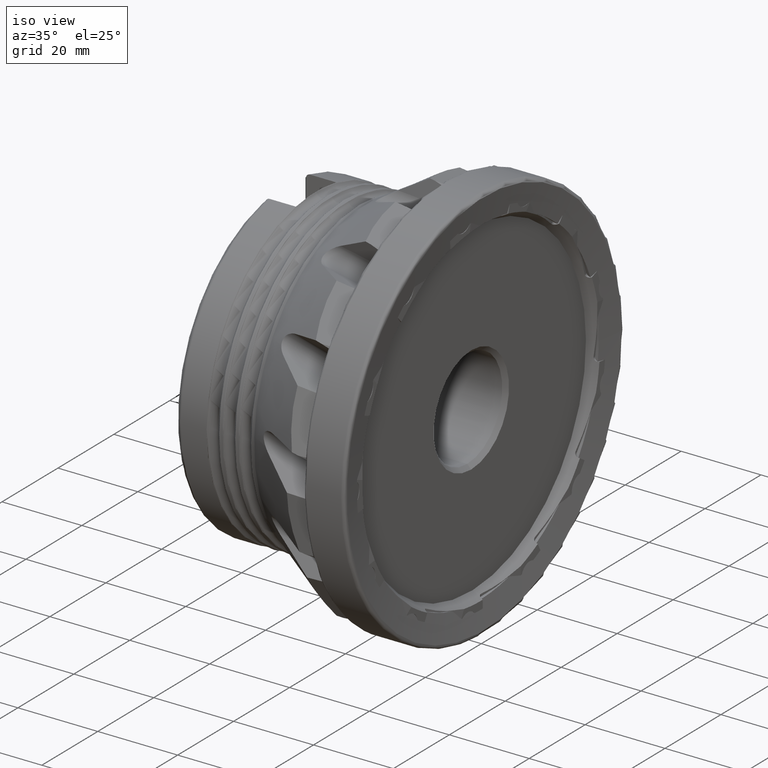
[diagram: clean part render]
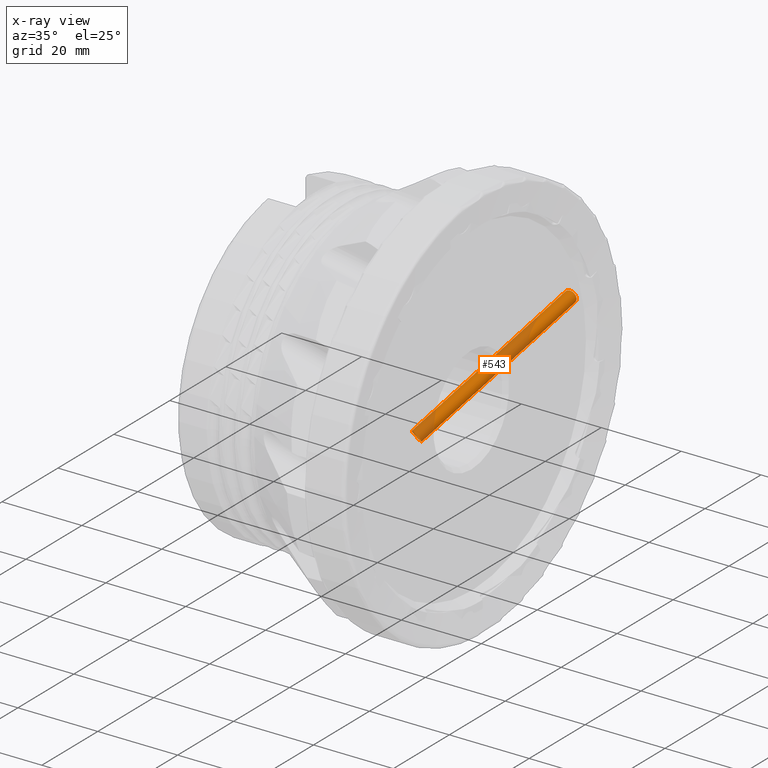
[diagram: x-ray — body ghosted, one internal face saturated and labeled with its STEP entity id]
A machine part, iso view, then the same camera in x-ray: the body is ghosted and one INTERNAL B-rep face — a face not visible from any outside direction — is saturated and labeled: STEP entity #543.
In plain terms, the highlighted cylindrical surface (bore or boss wall) has radius 1.5 mm, axis along (-0.383, -0.7361, -0.5581).
Its self-contained STEP definition (entity closure, byte-faithful):
#543 = ADVANCED_FACE ( 'NONE', ( #6629, #10851 ), #8543, .F. ) ;
#913 = CARTESIAN_POINT ( 'NONE',  ( -8.594431650126747300, 41.96749445976744400, 8.588939791978310400 ) ) ;
#957 = CARTESIAN_POINT ( 'NONE',  ( -6.560593080364640200, 41.56592660481933900, 9.906481771726600300 ) ) ;
#989 = CARTESIAN_POINT ( 'NONE',  ( -6.096087533610125700, 42.10220449255515300, 7.155683338932678200 ) ) ;
#1590 = AXIS2_PLACEMENT_3D ( 'NONE', #4880, #11867, #5899 ) ;
#1899 = CARTESIAN_POINT ( 'NONE',  ( -8.434067890988146100, 41.87808441614457400, 8.976146745443058400 ) ) ;
#1911 = EDGE_CURVE ( 'NONE', #7543, #7543, #3319, .T. ) ;
#1940 = CARTESIAN_POINT ( 'NONE',  ( -6.053787083671673000, 41.58089366858156700, 9.727966365416298400 ) ) ;
#1988 = CARTESIAN_POINT ( 'NONE',  ( -6.630379648889278800, 42.18809088860609100, 6.808450595441918600 ) ) ;
#2588 = B_SPLINE_CURVE_WITH_KNOTS ( 'NONE', 3,
 ( #2865, #7829, #3845, #10819, #4839, #11830, #5851, #12792, #6843, #913, #7874, #1899, #8875, #2911, #9858, #3883, #10868, #4877, #11865, #5898, #12839, #6878, #957, #7924, #1940, #8910, #2958, #9907, #3920, #10910, #4931, #11898, #5929, #12880, #6927, #989, #7965, #1988, #8952, #2995, #9954, #3967, #10948, #4978, #11947, #5962 ),
 .UNSPECIFIED., .T., .F.,
 ( 4, 2, 2, 2, 2, 2, 2, 2, 2, 2, 2, 2, 2, 2, 2, 2, 2, 2, 2, 2, 2, 2, 4 ),
 ( 0.0000000000000000000, 0.0003193963289397444800, 0.0006387926578794889600, 0.001277585315758977500, 0.001596981644698724200, 0.001916377973638470800, 0.002555170631517970600, 0.003193963289397471000, 0.003513359618337218400, 0.003832755947276965400, 0.004152152276216712800, 0.004471548605156460200, 0.005110341263035955000, 0.005429737591975704200, 0.005749133920915452400, 0.006068530249855202400, 0.006387926578794951600, 0.007665511894553950700, 0.008304304552433455100, 0.008943097210312956800, 0.009262493539252706800, 0.009581889868192460300, 0.01022068252607196200 ),
 .UNSPECIFIED. ) ;
#2654 = CARTESIAN_POINT ( 'NONE',  ( -0.4739454941726194400, 54.59191525470708900, 17.91465985784205700 ) ) ;
#2865 = CARTESIAN_POINT ( 'NONE',  ( -8.238318088300996300, 42.23840621931487500, 7.024260346499949600 ) ) ;
#2911 = CARTESIAN_POINT ( 'NONE',  ( -8.036172849586970200, 41.74904844705238100, 9.463324593721244700 ) ) ;
#2958 = CARTESIAN_POINT ( 'NONE',  ( -5.742618648781871100, 41.63101460373925300, 9.436667115735254200 ) ) ;
#2995 = CARTESIAN_POINT ( 'NONE',  ( -7.146798854297932400, 42.23644347450440500, 6.677323959727436500 ) ) ;
#3319 = CIRCLE ( 'NONE', #1590, 1.499999999999996700 ) ;
#3382 = DIRECTION ( 'NONE',  ( 0.0000000000000000000, 0.6042130641005342100, -0.7968227991029396300 ) ) ;
#3845 = CARTESIAN_POINT ( 'NONE',  ( -8.384928883762803800, 42.22021899432779400, 7.179531769876204500 ) ) ;
#3854 = ORIENTED_EDGE ( 'NONE', *, *, #12339, .T. ) ;
#3883 = CARTESIAN_POINT ( 'NONE',  ( -7.594733835440100800, 41.65910292605858000, 9.749032829025408000 ) ) ;
#3920 = CARTESIAN_POINT ( 'NONE',  ( -5.573269776243663800, 41.68226598706485200, 9.166325417243307100 ) ) ;
#3967 = CARTESIAN_POINT ( 'NONE',  ( -7.467013906228320500, 42.25375560774596600, 6.675790530487002000 ) ) ;
#4407 = DIRECTION ( 'NONE',  ( -0.3830222215594869500, -0.7360563981285998000, -0.5581352493487465900 ) ) ;
#4839 = CARTESIAN_POINT ( 'NONE',  ( -8.547694844880380700, 42.18125022257309100, 7.454602289849119300 ) ) ;
#4877 = CARTESIAN_POINT ( 'NONE',  ( -7.298280576122889100, 41.61624279927832500, 9.862834659866766900 ) ) ;
#4880 = CARTESIAN_POINT ( 'NONE',  ( -23.45527878774184000, 10.42853136699109500, -15.57345510308274700 ) ) ;
#4931 = CARTESIAN_POINT ( 'NONE',  ( -5.473503664751606700, 41.74194474539902400, 8.865417045526848800 ) ) ;
#4978 = CARTESIAN_POINT ( 'NONE',  ( -7.885369414029515400, 42.26078296508890000, 6.772051076082855800 ) ) ;
#5851 = CARTESIAN_POINT ( 'NONE',  ( -8.681033632854386900, 42.09508121460150000, 7.966823873289152800 ) ) ;
#5898 = CARTESIAN_POINT ( 'NONE',  ( -6.986232429220022400, 41.58520103178803100, 9.922281223421167700 ) ) ;
#5899 = DIRECTION ( 'NONE',  ( 0.0000000000000000000, -0.6042130641005356600, 0.7968227991029386300 ) ) ;
#5929 = CARTESIAN_POINT ( 'NONE',  ( -5.442406352151011500, 41.80557671740043400, 8.552185586081046500 ) ) ;
#5962 = CARTESIAN_POINT ( 'NONE',  ( -8.238318088300996300, 42.23840621931487500, 7.024260346499949600 ) ) ;
#6304 = CARTESIAN_POINT ( 'NONE',  ( -23.45527878774184000, 9.522211770840293400, -14.37822090442834300 ) ) ;
#6629 = FACE_OUTER_BOUND ( 'NONE', #8447, .T. ) ;
#6843 = CARTESIAN_POINT ( 'NONE',  ( -8.644793474358452900, 42.01119177850431900, 8.386149080790820800 ) ) ;
#6878 = CARTESIAN_POINT ( 'NONE',  ( -6.665615560325641700, 41.56812771070610100, 9.921062083653881200 ) ) ;
#6927 = CARTESIAN_POINT ( 'NONE',  ( -5.669988237432451500, 41.99791131529765000, 7.624655873252407000 ) ) ;
#7163 = AXIS2_PLACEMENT_3D ( 'NONE', #2654, #4407, #3382 ) ;
#7543 = VERTEX_POINT ( 'NONE', #6304 ) ;
#7544 = CARTESIAN_POINT ( 'NONE',  ( -8.238318088300998100, 42.23840621931488200, 7.024260346499950500 ) ) ;
#7829 = CARTESIAN_POINT ( 'NONE',  ( -8.317168852028864000, 42.23037423832880700, 7.097873516065800600 ) ) ;
#7874 = CARTESIAN_POINT ( 'NONE',  ( -8.560615930697114400, 41.94533651722393600, 8.687671004284718300 ) ) ;
#7924 = CARTESIAN_POINT ( 'NONE',  ( -6.249064998790053100, 41.56784709373489800, 9.827451507334894000 ) ) ;
#7965 = CARTESIAN_POINT ( 'NONE',  ( -6.261775543216458600, 42.13359446718053600, 7.020782177268256600 ) ) ;
#8447 = EDGE_LOOP ( 'NONE', ( #12814 ) ) ;
#8543 = CYLINDRICAL_SURFACE ( 'NONE', #7163, 1.499999999999994700 ) ;
#8875 = CARTESIAN_POINT ( 'NONE',  ( -8.319330065985672800, 41.83369212317065700, 9.151873501404068600 ) ) ;
#8910 = CARTESIAN_POINT ( 'NONE',  ( -5.812721889154045300, 41.61673317180375900, 9.515881911219484100 ) ) ;
#8952 = CARTESIAN_POINT ( 'NONE',  ( -6.828426808187416900, 42.21066232956602700, 6.732845745115730200 ) ) ;
#9858 = CARTESIAN_POINT ( 'NONE',  ( -7.871636948216286500, 41.70997457147893800, 9.594758060339755100 ) ) ;
#9907 = CARTESIAN_POINT ( 'NONE',  ( -5.622435055129162900, 41.66383945142642600, 9.261543408078837900 ) ) ;
#9954 = CARTESIAN_POINT ( 'NONE',  ( -7.253279949340834400, 42.24339018047685100, 6.669262846195921100 ) ) ;
#10819 = CARTESIAN_POINT ( 'NONE',  ( -8.500211695780960100, 42.19573454535838400, 7.357488996982985100 ) ) ;
#10851 = FACE_OUTER_BOUND ( 'NONE', #12107, .T. ) ;
#10868 = CARTESIAN_POINT ( 'NONE',  ( -7.497078347699266000, 41.64345135118970400, 9.793152747342794800 ) ) ;
#10910 = CARTESIAN_POINT ( 'NONE',  ( -5.499195843043034800, 41.72110113965410200, 8.969367563379197600 ) ) ;
#10948 = CARTESIAN_POINT ( 'NONE',  ( -7.575434740007884700, 42.25715759313120400, 6.690885638804294500 ) ) ;
#11105 = VERTEX_POINT ( 'NONE', #7544 ) ;
#11830 = CARTESIAN_POINT ( 'NONE',  ( -8.654472985219209500, 42.13354720859508300, 7.752764821910090200 ) ) ;
#11865 = CARTESIAN_POINT ( 'NONE',  ( -7.196213775414143800, 41.60449902928183300, 9.888984326189763900 ) ) ;
#11867 = DIRECTION ( 'NONE',  ( 0.3830222215594870100, 0.7360563981285998000, 0.5581352493487467000 ) ) ;
#11898 = CARTESIAN_POINT ( 'NONE',  ( -5.445331338909785900, 41.78413178565355700, 8.657093642742232500 ) ) ;
#11947 = CARTESIAN_POINT ( 'NONE',  ( -8.080616560845257400, 42.25447018128702600, 6.877034007368245700 ) ) ;
#12107 = EDGE_LOOP ( 'NONE', ( #3854 ) ) ;
#12339 = EDGE_CURVE ( 'NONE', #11105, #11105, #2588, .T. ) ;
#12792 = CARTESIAN_POINT ( 'NONE',  ( -8.661340360688296200, 42.03290915021663900, 8.281159343043786000 ) ) ;
#12814 = ORIENTED_EDGE ( 'NONE', *, *, #1911, .F. ) ;
#12839 = CARTESIAN_POINT ( 'NONE',  ( -6.877773193978314700, 41.57768711368561300, 9.929139702240592100 ) ) ;
#12880 = CARTESIAN_POINT ( 'NONE',  ( -5.479405873040228400, 41.91419663401522700, 8.024146311290506300 ) ) ;